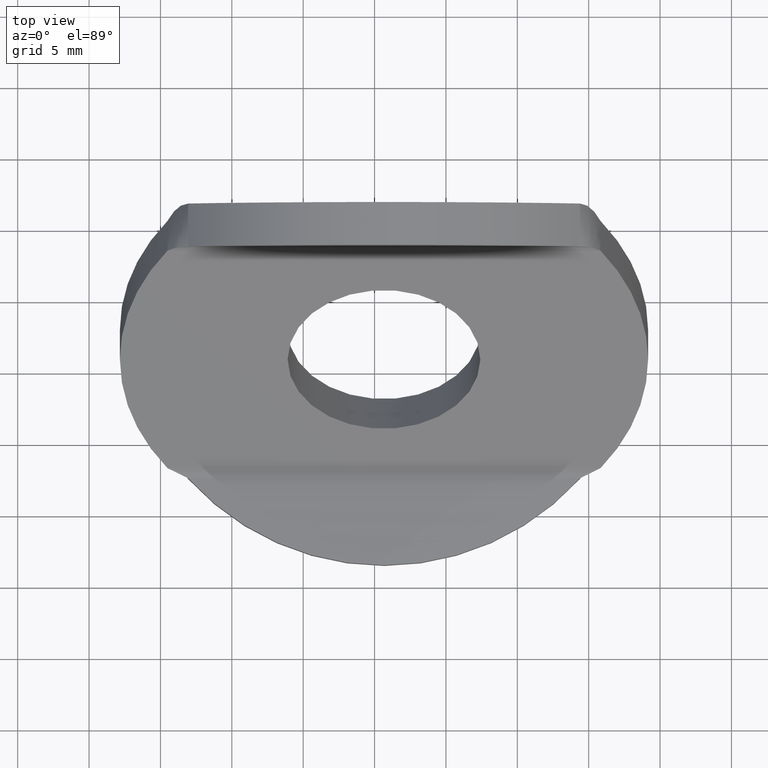
[diagram: clean part render]
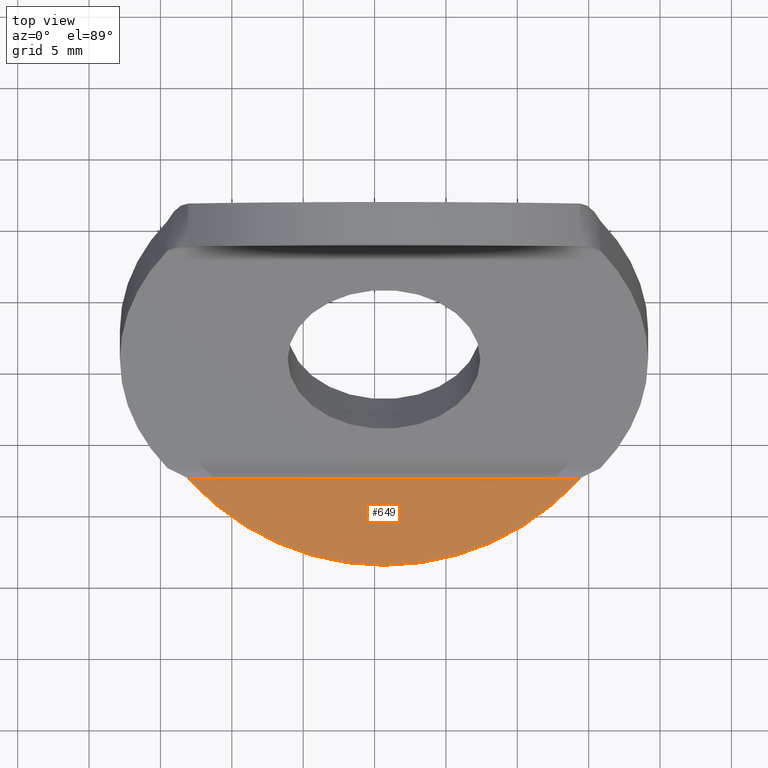
[diagram: same view with one face highlighted and labeled with its STEP entity id]
A machine part, top view. The second image highlights one B-rep face of the part: STEP entity #649.
In plain terms, the highlighted planar face has unit normal (0, 0, -1).
Its self-contained STEP definition (entity closure, byte-faithful):
#360=CARTESIAN_POINT('',(34.380578876254539,-7.367725169750537,3.000000000000000));
#361=VERTEX_POINT('',#360);
#568=CARTESIAN_POINT('',(6.942244869217999,-7.367725169750546,3.000000000000000));
#569=VERTEX_POINT('',#568);
#618=CARTESIAN_POINT('',(34.380578876254539,-7.367725169750537,3.000000000000000));
#619=DIRECTION('',(-1.0,0.0,0.0));
#620=VECTOR('',#619,27.438334007036538);
#621=LINE('',#618,#620);
#622=EDGE_CURVE('',#361,#569,#621,.T.);
#634=CARTESIAN_POINT('',(20.661411872736263,5.043336699790500,3.000000000000000));
#635=DIRECTION('',(0.0,0.0,-1.0));
#636=DIRECTION('',(-1.0,0.0,0.0));
#637=AXIS2_PLACEMENT_3D('',#634,#635,#636);
#638=PLANE('',#637);
#639=ORIENTED_EDGE('',*,*,#622,.T.);
#640=CARTESIAN_POINT('',(20.661411872736263,5.043336699790500,3.000000000000000));
#641=DIRECTION('',(0.0,0.0,-1.0));
#642=DIRECTION('',(-1.0,0.0,0.0));
#643=AXIS2_PLACEMENT_3D('',#640,#641,#642);
#644=CIRCLE('',#643,18.500000000000000);
#645=EDGE_CURVE('',#361,#569,#644,.T.);
#646=ORIENTED_EDGE('',*,*,#645,.F.);
#647=EDGE_LOOP('',(#639,#646));
#648=FACE_OUTER_BOUND('',#647,.T.);
#649=ADVANCED_FACE('',(#648),#638,.F.);